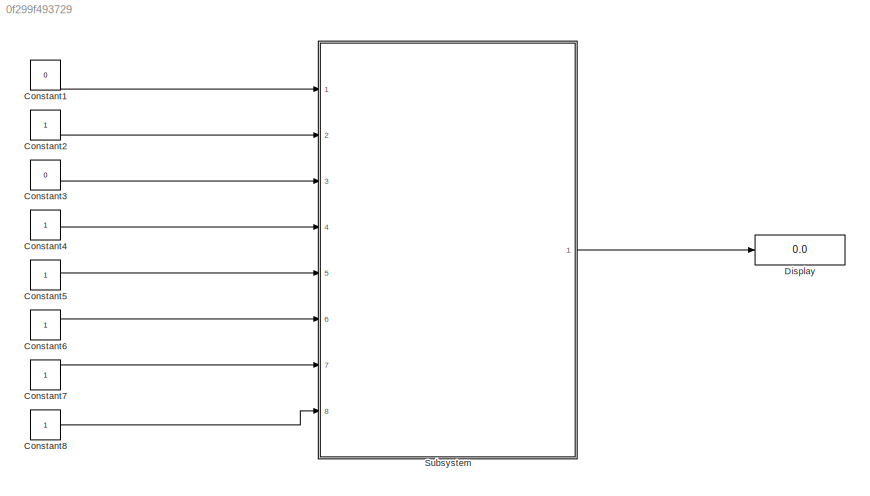
MODEL slx_0f299f493729
KIND model
BLOCK [Constant] Constant1
  OutDataTypeStr = boolean
  Value = 0
BLOCK [Constant] Constant2
  OutDataTypeStr = boolean
BLOCK [Constant] Constant3
  OutDataTypeStr = boolean
  Value = 0
BLOCK [Constant] Constant4
  OutDataTypeStr = boolean
BLOCK [Constant] Constant5
  OutDataTypeStr = boolean
BLOCK [Constant] Constant6
  OutDataTypeStr = boolean
BLOCK [Constant] Constant7
  OutDataTypeStr = boolean
BLOCK [Constant] Constant8
  OutDataTypeStr = boolean
BLOCK [Display] Display
  Decimation = 1
  Ports = [1]
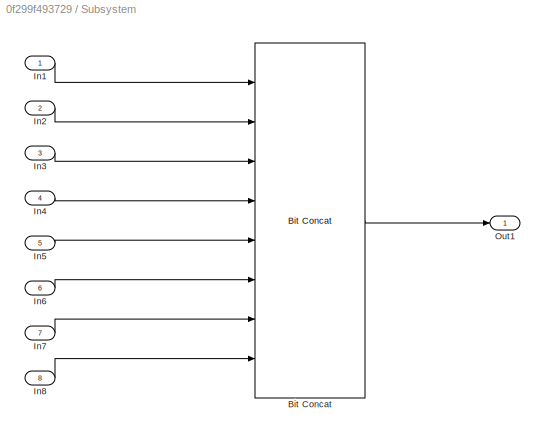
BLOCK [SubSystem] Subsystem
  Ports = [8, 1]
  RequestExecContextInheritance = off
BLOCK [Reference] Subsystem/Bit Concat  REF=hdlsllib/HDL Operations/Bit Concat
  Ports = [8, 1]
  SourceBlock = hdlsllib/HDL Operations/Bit Concat
  SourceType = Bit Concat
  numInputs = 8
BLOCK [Inport] Subsystem/In1
  IconDisplay = Port number
  OutDataTypeStr = boolean
  SampleTime = 1
BLOCK [Inport] Subsystem/In2
  IconDisplay = Port number
  OutDataTypeStr = boolean
  Port = 2
  SampleTime = 1
BLOCK [Inport] Subsystem/In3
  IconDisplay = Port number
  OutDataTypeStr = boolean
  Port = 3
  SampleTime = 1
BLOCK [Inport] Subsystem/In4
  IconDisplay = Port number
  OutDataTypeStr = boolean
  Port = 4
  SampleTime = 1
BLOCK [Inport] Subsystem/In5
  IconDisplay = Port number
  OutDataTypeStr = boolean
  Port = 5
  SampleTime = 1
BLOCK [Inport] Subsystem/In6
  IconDisplay = Port number
  OutDataTypeStr = boolean
  Port = 6
  SampleTime = 1
BLOCK [Inport] Subsystem/In7
  IconDisplay = Port number
  OutDataTypeStr = boolean
  Port = 7
  SampleTime = 1
BLOCK [Inport] Subsystem/In8
  IconDisplay = Port number
  OutDataTypeStr = boolean
  Port = 8
  SampleTime = 1
BLOCK [Outport] Subsystem/Out1
  IconDisplay = Port number
LINE Constant1:1 -> Subsystem:1
LINE Constant2:1 -> Subsystem:2
LINE Constant3:1 -> Subsystem:3
LINE Constant4:1 -> Subsystem:4
LINE Constant5:1 -> Subsystem:5
LINE Constant6:1 -> Subsystem:6
LINE Constant7:1 -> Subsystem:7
LINE Constant8:1 -> Subsystem:8
LINE Subsystem/Bit Concat:1 -> Subsystem/Out1:1
LINE Subsystem/In1:1 -> Subsystem/Bit Concat:1
LINE Subsystem/In2:1 -> Subsystem/Bit Concat:2
LINE Subsystem/In3:1 -> Subsystem/Bit Concat:3
LINE Subsystem/In4:1 -> Subsystem/Bit Concat:4
LINE Subsystem/In5:1 -> Subsystem/Bit Concat:5
LINE Subsystem/In6:1 -> Subsystem/Bit Concat:6
LINE Subsystem/In7:1 -> Subsystem/Bit Concat:7
LINE Subsystem/In8:1 -> Subsystem/Bit Concat:8
LINE Subsystem:1 -> Display:1
